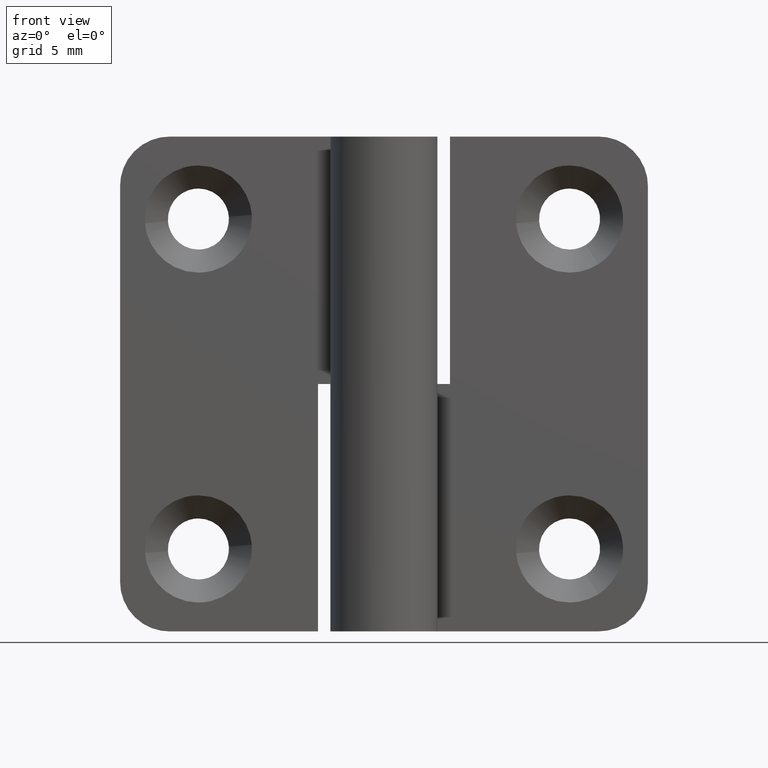
[diagram: clean part render]
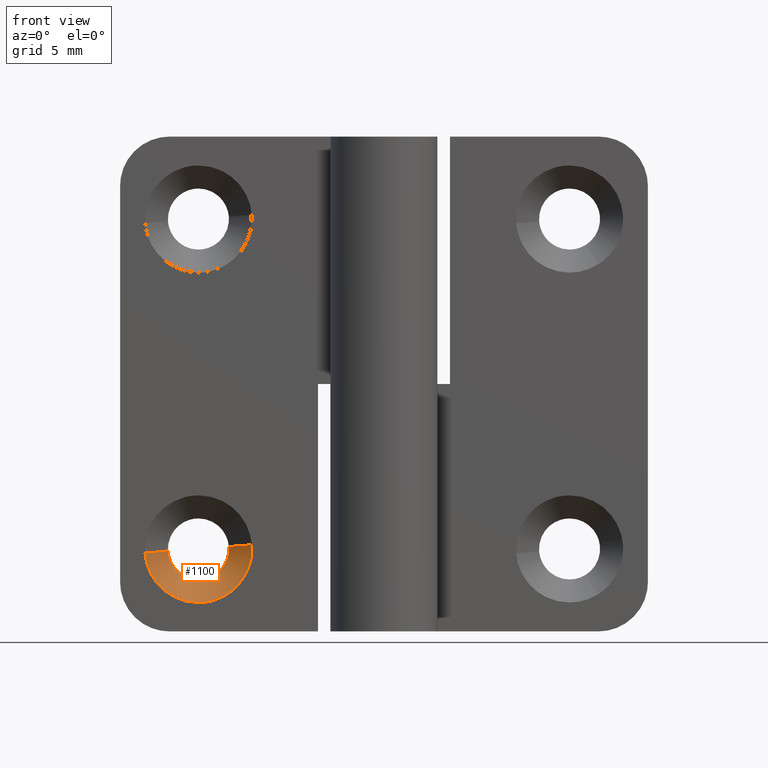
[diagram: same view with one face highlighted and labeled with its STEP entity id]
A machine part, front view. The second image highlights one B-rep face of the part: STEP entity #1100.
In plain terms, the highlighted face is a freeform B-spline surface patch.
Its self-contained STEP definition (entity closure, byte-faithful):
#787=CARTESIAN_POINT('',(-9.412081992144920,3.149999940395355,4.788913770221711));
#788=VERTEX_POINT('',#787);
#789=CARTESIAN_POINT('',(-11.250000000000000,3.149999940395355,3.150000000000000));
#790=VERTEX_POINT('',#789);
#791=CARTESIAN_POINT('',(-9.412081992144920,3.149999940395355,4.788913770221711));
#792=CARTESIAN_POINT('',(-9.600312439435589,3.149999940395356,3.150000000000000));
#793=CARTESIAN_POINT('',(-11.250000000000000,3.149999940395355,3.150000000000000));
#801=(BOUNDED_CURVE()B_SPLINE_CURVE(2,(#791,#792,#793),.UNSPECIFIED.,.F.,.U.)B_SPLINE_CURVE_WITH_KNOTS((3,3),(0.269767755878197,0.500000000000000),.UNSPECIFIED.)CURVE()GEOMETRIC_REPRESENTATION_ITEM()RATIONAL_B_SPLINE_CURVE((0.957343736457532,0.730266147778082,1.0))REPRESENTATION_ITEM(''));
#802=EDGE_CURVE('',#788,#790,#801,.T.);
#841=CARTESIAN_POINT('',(-13.095986219380240,3.150000111241691,4.879007888306630));
#842=VERTEX_POINT('',#841);
#848=CARTESIAN_POINT('',(-11.250000000000000,3.149999940395355,3.150000000000000));
#849=CARTESIAN_POINT('',(-12.982687887039289,3.150000025818523,3.150001730436162));
#850=CARTESIAN_POINT('',(-13.095986219380240,3.150000111241691,4.879007888306630));
#858=(BOUNDED_CURVE()B_SPLINE_CURVE(2,(#848,#849,#850),.UNSPECIFIED.,.F.,.U.)B_SPLINE_CURVE_WITH_KNOTS((3,3),(0.500000000000000,0.738580725636300),.UNSPECIFIED.)CURVE()GEOMETRIC_REPRESENTATION_ITEM()RATIONAL_B_SPLINE_CURVE((1.0,0.720485293286140,0.974465159002762))REPRESENTATION_ITEM(''));
#859=EDGE_CURVE('',#790,#842,#858,.T.);
#890=CARTESIAN_POINT('',(-9.405703253720390,3.150000282088026,5.145149052355023));
#891=VERTEX_POINT('',#890);
#892=CARTESIAN_POINT('',(-9.405703253720390,3.150000282088026,5.145149052355023));
#893=CARTESIAN_POINT('',(-9.399999999999999,3.149999940395356,5.072686448881026));
#894=CARTESIAN_POINT('',(-9.399999999999999,3.149999940395355,5.0));
#895=CARTESIAN_POINT('',(-9.399999999999997,3.149999940395356,4.894111115194503));
#896=CARTESIAN_POINT('',(-9.412081992144920,3.149999940395355,4.788913770221711));
#904=(BOUNDED_CURVE()B_SPLINE_CURVE(2,(#892,#893,#894,#895,#896),.UNSPECIFIED.,.F.,.U.)B_SPLINE_CURVE_WITH_KNOTS((3,2,3),(0.236331346722652,0.250000000000000,0.269767755878197),.UNSPECIFIED.)CURVE()GEOMETRIC_REPRESENTATION_ITEM()RATIONAL_B_SPLINE_CURVE((0.969723452357909,0.983986176579010,1.0,0.976840633408466,0.957343736457532))REPRESENTATION_ITEM(''));
#905=EDGE_CURVE('',#891,#788,#904,.T.);
#993=CARTESIAN_POINT('',(-8.010018665362717,1.749999999988450,5.254992061204042));
#994=VERTEX_POINT('',#993);
#995=CARTESIAN_POINT('',(-9.405703253720390,3.150000282088026,5.145149052355023));
#996=CARTESIAN_POINT('',(-8.010018665362717,1.749999999988450,5.254992061204042));
#997=QUASI_UNIFORM_CURVE('',1,(#995,#996),.UNSPECIFIED.,.F.,.U.);
#998=EDGE_CURVE('',#891,#994,#997,.T.);
#1015=CARTESIAN_POINT('',(-14.489981334637280,1.749999999988450,4.745007938795959));
#1016=VERTEX_POINT('',#1015);
#1032=CARTESIAN_POINT('',(-13.095986219380240,3.150000111241691,4.879007888306630));
#1033=CARTESIAN_POINT('',(-14.489981334637280,1.749999999988450,4.745007938795959));
#1034=QUASI_UNIFORM_CURVE('',1,(#1032,#1033),.UNSPECIFIED.,.F.,.U.);
#1035=EDGE_CURVE('',#842,#1016,#1034,.T.);
#1041=CARTESIAN_POINT('',(-13.063248775919009,3.184999938905241,4.906437044069077));
#1042=CARTESIAN_POINT('',(-13.061337672806840,3.184999938905239,4.882154176653925));
#1043=CARTESIAN_POINT('',(-12.917001701979586,3.184999938905240,3.048191780528335));
#1044=CARTESIAN_POINT('',(-11.107596741253960,3.184999938905240,3.190595039274374));
#1045=CARTESIAN_POINT('',(-9.298191780528335,3.184999938905240,3.332998298020413));
#1046=CARTESIAN_POINT('',(-9.441603674633527,3.184999938905241,5.155219186123556));
#1047=CARTESIAN_POINT('',(-9.442606408926718,3.184999938905240,5.167960133348836));
#1048=CARTESIAN_POINT('',(-14.532704584888640,1.714125001527370,4.830613676132494));
#1049=CARTESIAN_POINT('',(-14.529244724867313,1.714125001527369,4.786651986343094));
#1050=CARTESIAN_POINT('',(-14.267938962805607,1.714125001527369,1.466447474844924));
#1051=CARTESIAN_POINT('',(-10.992193218825269,1.714125001527369,1.724254256019658));
#1052=CARTESIAN_POINT('',(-7.716447474844923,1.714125001527369,1.982061037194391));
#1053=CARTESIAN_POINT('',(-7.976080288918143,1.714125001527369,5.281008729037871));
#1054=CARTESIAN_POINT('',(-7.977895638530067,1.714125001527370,5.304074932874712));
#1062=(BOUNDED_SURFACE()B_SPLINE_SURFACE(2,1,((#1041,#1048),(#1042,#1049),(#1043,#1050),(#1044,#1051),(#1045,#1052),(#1046,#1053),(#1047,#1054)),.UNSPECIFIED.,.F.,.F.,.U.)B_SPLINE_SURFACE_WITH_KNOTS((3,1,2,1,3),(2,2),(0.0,0.105086265666453,5.549302222717232,10.993518179768010,11.048212298953590),(0.0,2.080510187200771),.UNSPECIFIED.)GEOMETRIC_REPRESENTATION_ITEM()RATIONAL_B_SPLINE_SURFACE(((1.011307066011689,1.011307066011689),(1.005653533005845,1.005653533005845),(0.707106781186548,0.707106781186548),(1.0,1.0),(0.707106781186548,0.707106781186548),(1.002942487356271,1.002942487356271),(1.005884974712542,1.005884974712542)))REPRESENTATION_ITEM('')SURFACE());
#1063=ORIENTED_EDGE('',*,*,#905,.T.);
#1064=ORIENTED_EDGE('',*,*,#802,.T.);
#1065=ORIENTED_EDGE('',*,*,#859,.T.);
#1066=ORIENTED_EDGE('',*,*,#1035,.T.);
#1067=CARTESIAN_POINT('',(-11.250000000000000,1.750000000000000,1.750000000000000));
#1068=VERTEX_POINT('',#1067);
#1069=CARTESIAN_POINT('',(-11.250000000000000,1.750000000000000,1.750000000000000));
#1070=CARTESIAN_POINT('',(-14.254269097726150,1.750000000000000,1.750000000000000));
#1071=CARTESIAN_POINT('',(-14.489981334637289,1.749999999988451,4.745007938795959));
#1079=(BOUNDED_CURVE()B_SPLINE_CURVE(2,(#1069,#1070,#1071),.UNSPECIFIED.,.F.,.U.)B_SPLINE_CURVE_WITH_KNOTS((3,3),(0.500000000000000,0.736331300623494),.UNSPECIFIED.)CURVE()GEOMETRIC_REPRESENTATION_ITEM()RATIONAL_B_SPLINE_CURVE((1.0,0.723120658616061,0.969723356152463))REPRESENTATION_ITEM(''));
#1080=EDGE_CURVE('',#1068,#1016,#1079,.T.);
#1081=ORIENTED_EDGE('',*,*,#1080,.F.);
#1082=CARTESIAN_POINT('',(-8.010018665362717,1.749999999988450,5.254992061204042));
#1083=CARTESIAN_POINT('',(-8.0,1.750000000000001,5.127692847862971));
#1084=CARTESIAN_POINT('',(-8.0,1.750000000000000,5.0));
#1085=CARTESIAN_POINT('',(-8.0,1.750000000000000,1.750000000000000));
#1086=CARTESIAN_POINT('',(-11.250000000000000,1.750000000000000,1.750000000000000));
#1094=(BOUNDED_CURVE()B_SPLINE_CURVE(2,(#1082,#1083,#1084,#1085,#1086),.UNSPECIFIED.,.F.,.U.)B_SPLINE_CURVE_WITH_KNOTS((3,2,3),(0.236331300623493,0.250000000000000,0.500000000000000),.UNSPECIFIED.)CURVE()GEOMETRIC_REPRESENTATION_ITEM()RATIONAL_B_SPLINE_CURVE((0.969723356152462,0.983986122570486,1.0,0.707106781186547,1.0))REPRESENTATION_ITEM(''));
#1095=EDGE_CURVE('',#994,#1068,#1094,.T.);
#1096=ORIENTED_EDGE('',*,*,#1095,.F.);
#1097=ORIENTED_EDGE('',*,*,#998,.F.);
#1098=EDGE_LOOP('',(#1063,#1064,#1065,#1066,#1081,#1096,#1097));
#1099=FACE_OUTER_BOUND('',#1098,.T.);
#1100=ADVANCED_FACE('',(#1099),#1062,.F.);